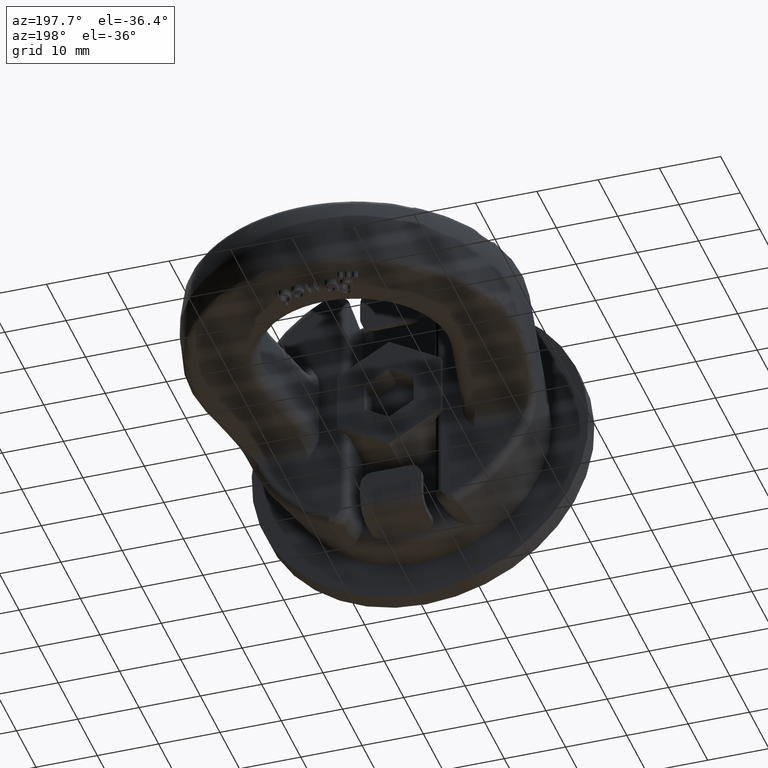
[diagram: clean part render]
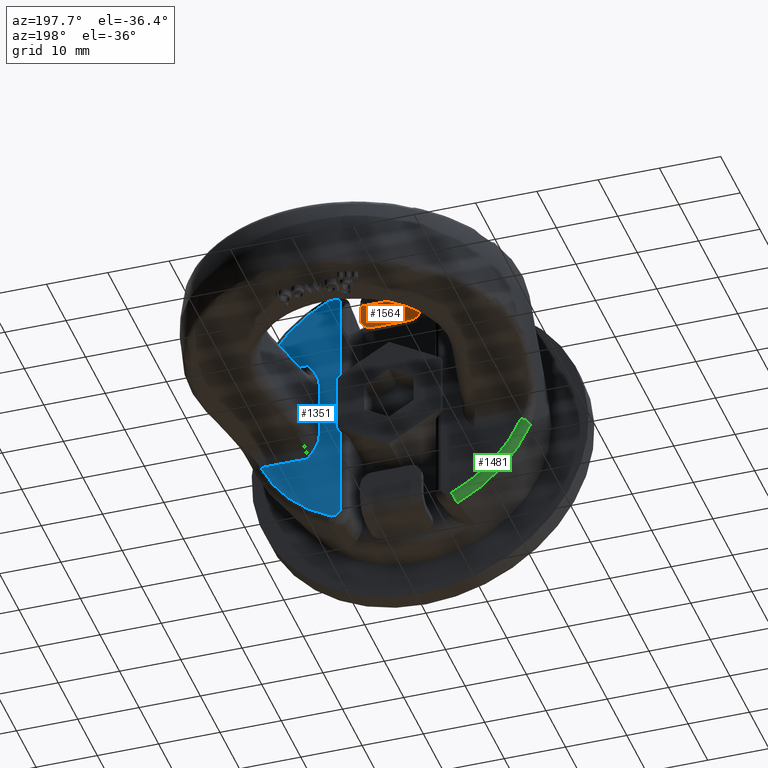
[diagram: same view with three faces highlighted in distinct colors, each labeled with its STEP entity id]
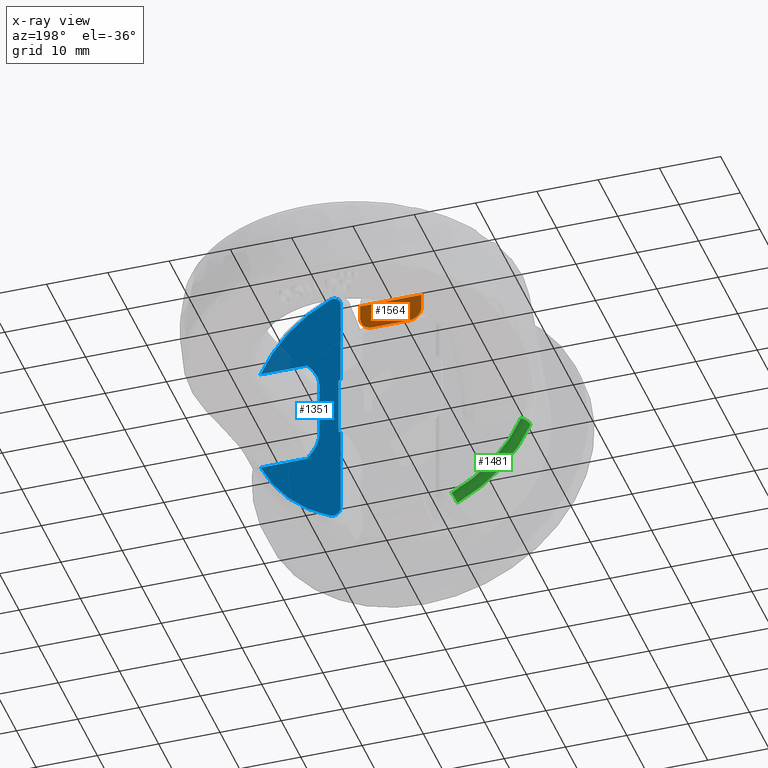
[diagram: x-ray of the same camera — body ghosted, the three highlighted faces saturated]
A machine part, auxiliary view with three faces highlighted in distinct colors.
The next image is the same camera in x-ray (body ghosted, the three faces saturated) — at least one of them is partly hidden behind the body in this view.
Their STEP definitions:

[orange] entity #1564 — the highlighted planar face has unit normal (0, -1, 0).
#1324=FACE_OUTER_BOUND('',#2108,.T.);
#1564=ADVANCED_FACE('',(#1324),#1694,.F.);
#1694=PLANE('',#5396);
#1779=CIRCLE('',#5394,2.);
#1780=CIRCLE('',#5395,2.);
#2108=EDGE_LOOP('',(#3819,#3820,#3821,#3822,#3823,#3824));
#2366=LINE('',#9649,#2702);
#2374=LINE('',#9671,#2710);
#2379=LINE('',#9684,#2715);
#2383=LINE('',#9698,#2719);
#2702=VECTOR('',#6158,1.);
#2710=VECTOR('',#6174,1.);
#2715=VECTOR('',#6183,1.);
#2719=VECTOR('',#6205,1.);
#3819=ORIENTED_EDGE('',*,*,#4851,.T.);
#3820=ORIENTED_EDGE('',*,*,#4859,.T.);
#3821=ORIENTED_EDGE('',*,*,#4845,.T.);
#3822=ORIENTED_EDGE('',*,*,#4860,.F.);
#3823=ORIENTED_EDGE('',*,*,#4835,.F.);
#3824=ORIENTED_EDGE('',*,*,#4861,.T.);
#4270=VERTEX_POINT('',#9648);
#4271=VERTEX_POINT('',#9650);
#4280=VERTEX_POINT('',#9670);
#4281=VERTEX_POINT('',#9672);
#4286=VERTEX_POINT('',#9683);
#4287=VERTEX_POINT('',#9685);
#4835=EDGE_CURVE('',#4270,#4271,#2366,.T.);
#4845=EDGE_CURVE('',#4281,#4280,#2374,.T.);
#4851=EDGE_CURVE('',#4287,#4286,#2379,.T.);
#4859=EDGE_CURVE('',#4286,#4281,#1779,.T.);
#4860=EDGE_CURVE('',#4271,#4280,#2383,.T.);
#4861=EDGE_CURVE('',#4270,#4287,#1780,.T.);
#5394=AXIS2_PLACEMENT_3D('',#9697,#6203,#6204);
#5395=AXIS2_PLACEMENT_3D('',#9699,#6206,#6207);
#5396=AXIS2_PLACEMENT_3D('',#9700,#6208,#6209);
#6158=DIRECTION('',(0.,0.,1.));
#6174=DIRECTION('',(0.,0.,1.));
#6183=DIRECTION('',(-1.,0.,0.));
#6203=DIRECTION('',(0.,1.,0.));
#6204=DIRECTION('',(0.,0.,-1.));
#6205=DIRECTION('',(-1.,0.,0.));
#6206=DIRECTION('',(0.,1.,0.));
#6207=DIRECTION('',(0.,0.,-1.));
#6208=DIRECTION('',(0.,-1.,0.));
#6209=DIRECTION('',(0.,0.,-1.));
#9648=CARTESIAN_POINT('',(5.,18.,16.));
#9649=CARTESIAN_POINT('',(5.,18.,14.));
#9650=CARTESIAN_POINT('',(5.,18.,18.5));
#9670=CARTESIAN_POINT('',(-5.,18.,18.5));
#9671=CARTESIAN_POINT('',(-5.,18.,14.));
#9672=CARTESIAN_POINT('',(-5.,18.,16.));
#9683=CARTESIAN_POINT('',(-3.,18.,14.));
#9684=CARTESIAN_POINT('',(5.,18.,14.));
#9685=CARTESIAN_POINT('',(3.,18.,14.));
#9697=CARTESIAN_POINT('',(-3.,18.,16.));
#9698=CARTESIAN_POINT('',(5.,18.,18.5));
#9699=CARTESIAN_POINT('',(3.,18.,16.));
#9700=CARTESIAN_POINT('',(5.,18.,14.));

[blue] entity #1351 — the highlighted planar face has unit normal (-0, 1, 0).
#1131=FACE_OUTER_BOUND('',#1868,.T.);
#1351=ADVANCED_FACE('',(#1131),#1591,.T.);
#1591=PLANE('',#5180);
#1712=CIRCLE('',#5178,23.0585735614723);
#1713=CIRCLE('',#5179,23.0585735614723);
#1868=EDGE_LOOP('',(#2839,#2840,#2841,#2842,#2843,#2844,#2845,#2846,#2847,
#2848,#2849,#2850,#2851,#2852));
#2184=LINE('',#6723,#2464);
#2185=LINE('',#6726,#2465);
#2186=LINE('',#6750,#2466);
#2187=LINE('',#6757,#2467);
#2188=LINE('',#6764,#2468);
#2189=LINE('',#6788,#2469);
#2190=LINE('',#6790,#2470);
#2191=LINE('',#6792,#2471);
#2464=VECTOR('',#5516,1.);
#2465=VECTOR('',#5517,1.);
#2466=VECTOR('',#5520,1.);
#2467=VECTOR('',#5521,1.);
#2468=VECTOR('',#5522,1.);
#2469=VECTOR('',#5525,1.);
#2470=VECTOR('',#5526,1.);
#2471=VECTOR('',#5527,1.);
#2839=ORIENTED_EDGE('',*,*,#4404,.T.);
#2840=ORIENTED_EDGE('',*,*,#4405,.T.);
#2841=ORIENTED_EDGE('',*,*,#4406,.T.);
#2842=ORIENTED_EDGE('',*,*,#4407,.T.);
#2843=ORIENTED_EDGE('',*,*,#4408,.T.);
#2844=ORIENTED_EDGE('',*,*,#4409,.T.);
#2845=ORIENTED_EDGE('',*,*,#4410,.F.);
#2846=ORIENTED_EDGE('',*,*,#4411,.T.);
#2847=ORIENTED_EDGE('',*,*,#4412,.T.);
#2848=ORIENTED_EDGE('',*,*,#4413,.T.);
#2849=ORIENTED_EDGE('',*,*,#4414,.T.);
#2850=ORIENTED_EDGE('',*,*,#4415,.T.);
#2851=ORIENTED_EDGE('',*,*,#4416,.T.);
#2852=ORIENTED_EDGE('',*,*,#4417,.T.);
#4013=VERTEX_POINT('',#6724);
#4014=VERTEX_POINT('',#6725);
#4015=VERTEX_POINT('',#6727);
#4016=VERTEX_POINT('',#6747);
#4017=VERTEX_POINT('',#6749);
#4018=VERTEX_POINT('',#6751);
#4019=VERTEX_POINT('',#6756);
#4020=VERTEX_POINT('',#6758);
#4021=VERTEX_POINT('',#6763);
#4022=VERTEX_POINT('',#6765);
#4023=VERTEX_POINT('',#6767);
#4024=VERTEX_POINT('',#6787);
#4025=VERTEX_POINT('',#6789);
#4026=VERTEX_POINT('',#6791);
#4404=EDGE_CURVE('',#4013,#4014,#2184,.T.);
#4405=EDGE_CURVE('',#4014,#4015,#2185,.T.);
#4406=EDGE_CURVE('',#4015,#4016,#4930,.T.);
#4407=EDGE_CURVE('',#4016,#4017,#1712,.T.);
#4408=EDGE_CURVE('',#4017,#4018,#2186,.T.);
#4409=EDGE_CURVE('',#4018,#4019,#4931,.T.);
#4410=EDGE_CURVE('',#4020,#4019,#2187,.T.);
#4411=EDGE_CURVE('',#4020,#4021,#4932,.T.);
#4412=EDGE_CURVE('',#4021,#4022,#2188,.T.);
#4413=EDGE_CURVE('',#4022,#4023,#1713,.T.);
#4414=EDGE_CURVE('',#4023,#4024,#4933,.T.);
#4415=EDGE_CURVE('',#4024,#4025,#2189,.T.);
#4416=EDGE_CURVE('',#4025,#4026,#2190,.T.);
#4417=EDGE_CURVE('',#4026,#4013,#2191,.T.);
#4930=B_SPLINE_CURVE_WITH_KNOTS('',3,(#6728,#6729,#6730,#6731,#6732,#6733,
#6734,#6735,#6736,#6737,#6738,#6739,#6740,#6741,#6742,#6743,#6744,#6745,
#6746),.UNSPECIFIED.,.F.,.F.,(4,3,3,3,3,3,4),(0.,0.173913740993882,0.34794975653833,
0.519970728914863,0.687916272468953,0.85218788622878,1.),.UNSPECIFIED.);
#4931=B_SPLINE_CURVE_WITH_KNOTS('',3,(#6752,#6753,#6754,#6755),
 .UNSPECIFIED.,.F.,.F.,(4,4),(0.,1.),.UNSPECIFIED.);
#4932=B_SPLINE_CURVE_WITH_KNOTS('',3,(#6759,#6760,#6761,#6762),
 .UNSPECIFIED.,.F.,.F.,(4,4),(0.,1.),.UNSPECIFIED.);
#4933=B_SPLINE_CURVE_WITH_KNOTS('',3,(#6768,#6769,#6770,#6771,#6772,#6773,
#6774,#6775,#6776,#6777,#6778,#6779,#6780,#6781,#6782,#6783,#6784,#6785,
#6786),.UNSPECIFIED.,.F.,.F.,(4,3,3,3,3,3,4),(0.,0.163143928497894,0.32634125043216,
0.488948773317029,0.6531592547778,0.820847093667727,1.),.UNSPECIFIED.);
#5178=AXIS2_PLACEMENT_3D('',#6748,#5518,#5519);
#5179=AXIS2_PLACEMENT_3D('',#6766,#5523,#5524);
#5180=AXIS2_PLACEMENT_3D('',#6793,#5528,#5529);
#5516=DIRECTION('',(-0.866025403784442,-1.28615169014872E-15,0.499999999999994));
#5517=DIRECTION('',(0.,0.,1.));
#5518=DIRECTION('',(-1.4851200490521E-15,1.,0.));
#5519=DIRECTION('',(-1.,-1.50462340729982E-15,0.));
#5520=DIRECTION('',(-1.,-1.4851200490521E-15,2.34206601248592E-31));
#5521=DIRECTION('',(0.,0.,1.));
#5522=DIRECTION('',(1.,1.4851200490521E-15,2.34291072916505E-15));
#5523=DIRECTION('',(-1.4851200490521E-15,1.,-3.47950369702229E-30));
#5524=DIRECTION('',(1.,1.50462340729982E-15,2.34291072916505E-15));
#5525=DIRECTION('',(-2.34291072916505E-15,0.,1.));
#5526=DIRECTION('',(0.866025403784441,1.28615169014872E-15,0.499999999999996));
#5527=DIRECTION('',(0.,0.,1.));
#5528=DIRECTION('',(-1.4851200490521E-15,1.,0.));
#5529=DIRECTION('',(-1.,-1.48492329543615E-15,0.));
#6723=CARTESIAN_POINT('',(-3.59863423223956,18.,11.8926270189221));
#6724=CARTESIAN_POINT('',(8.5,18.,4.90747728811183));
#6725=CARTESIAN_POINT('',(8.2,18.,5.08068236886872));
#6726=CARTESIAN_POINT('',(8.2,18.,30.25));
#6727=CARTESIAN_POINT('',(8.2,18.,19.7074068898093));
#6728=CARTESIAN_POINT('',(8.2,18.,19.7074068898093));
#6729=CARTESIAN_POINT('',(8.19999999999997,18.,19.8475984672965));
#6730=CARTESIAN_POINT('',(8.22403019668563,18.,19.9897280138441));
#6731=CARTESIAN_POINT('',(8.27029605568074,18.,20.1220652674418));
#6732=CARTESIAN_POINT('',(8.31657998890804,18.,20.2544542199445));
#6733=CARTESIAN_POINT('',(8.38645599770044,18.,20.3807404755586));
#6734=CARTESIAN_POINT('',(8.47442050700574,18.,20.4899708848887));
#6735=CARTESIAN_POINT('',(8.5613552141957,18.,20.5979225318239));
#6736=CARTESIAN_POINT('',(8.66847689034592,18.,20.692256622393));
#6737=CARTESIAN_POINT('',(8.78685429309547,18.,20.7643537229484));
#6738=CARTESIAN_POINT('',(8.90245954289845,18.,20.8347624591277));
#6739=CARTESIAN_POINT('',(9.03210022045376,18.,20.8859368215231));
#6740=CARTESIAN_POINT('',(9.16470424408274,18.,20.9131054952076));
#6741=CARTESIAN_POINT('',(9.29446715757258,18.,20.9396920659351));
#6742=CARTESIAN_POINT('',(9.43069080674379,18.,20.9440349645498));
#6743=CARTESIAN_POINT('',(9.56187906543494,18.,20.9257346847158));
#6744=CARTESIAN_POINT('',(9.68025775905732,18.,20.9092212921203));
#6745=CARTESIAN_POINT('',(9.79738029960473,18.,20.8739895602634));
#6746=CARTESIAN_POINT('',(9.90531520880016,18.,20.8226450122011));
#6747=CARTESIAN_POINT('',(9.90531520880016,18.,20.8226450122011));
#6748=CARTESIAN_POINT('',(-2.27704335976231E-13,18.,0.));
#6749=CARTESIAN_POINT('',(21.2296447141686,18.,9.00000000000001));
#6750=CARTESIAN_POINT('',(7.,18.,9.00000000000001));
#6751=CARTESIAN_POINT('',(13.6366331307684,18.,9.00000000000001));
#6752=CARTESIAN_POINT('',(13.6366331307684,18.,9.00000000000001));
#6753=CARTESIAN_POINT('',(12.5971688054422,18.,7.83719916176281));
#6754=CARTESIAN_POINT('',(11.6722781153861,18.,6.44214330428342));
#6755=CARTESIAN_POINT('',(11.6722781153861,18.,4.86617382128197));
#6756=CARTESIAN_POINT('',(11.6722781153861,18.,4.86617382128197));
#6757=CARTESIAN_POINT('',(11.6722781153861,18.,30.25));
#6758=CARTESIAN_POINT('',(11.6722781153861,18.,-4.86617382128196));
#6759=CARTESIAN_POINT('',(11.6722781153861,18.,-4.86617382128196));
#6760=CARTESIAN_POINT('',(11.6722781153861,18.,-6.4421433042834));
#6761=CARTESIAN_POINT('',(12.5971688054416,18.,-7.83719916176337));
#6762=CARTESIAN_POINT('',(13.6366331307684,18.,-8.99999999999998));
#6763=CARTESIAN_POINT('',(13.6366331307684,18.,-8.99999999999998));
#6764=CARTESIAN_POINT('',(11.6722781153861,18.,-8.99999999999998));
#6765=CARTESIAN_POINT('',(21.2296447141688,18.,-8.99999999999996));
#6766=CARTESIAN_POINT('',(1.11938377458753E-13,18.,2.62261625553439E-28));
#6767=CARTESIAN_POINT('',(9.9053152087982,18.,-20.8226450122021));
#6768=CARTESIAN_POINT('',(9.9053152087982,18.,-20.8226450122021));
#6769=CARTESIAN_POINT('',(9.78649389450193,18.,-20.8791682142705));
#6770=CARTESIAN_POINT('',(9.65634064361188,18.,-20.9161308543706));
#6771=CARTESIAN_POINT('',(9.52551778788252,18.,-20.9302289933248));
#6772=CARTESIAN_POINT('',(9.39466572896151,18.,-20.9443302793639));
#6773=CARTESIAN_POINT('',(9.25955769077138,18.,-20.9359288782153));
#6774=CARTESIAN_POINT('',(9.1314459861281,18.,-20.9057875656158));
#6775=CARTESIAN_POINT('',(9.00375929452363,18.,-20.8757462473994));
#6776=CARTESIAN_POINT('',(8.87954905156012,18.,-20.8233256931006));
#6777=CARTESIAN_POINT('',(8.76875334206031,18.,-20.7531068724788));
#6778=CARTESIAN_POINT('',(8.65685200514298,18.,-20.6821873401269));
#6779=CARTESIAN_POINT('',(8.55561372272324,18.,-20.5912500896661));
#6780=CARTESIAN_POINT('',(8.47274486446852,18.,-20.4878854844839));
#6781=CARTESIAN_POINT('',(8.38813368758692,18.,-20.3823476373775));
#6782=CARTESIAN_POINT('',(8.32038451426799,18.,-20.2610559114222));
#6783=CARTESIAN_POINT('',(8.27447115351672,18.,-20.133818921008));
#6784=CARTESIAN_POINT('',(8.22549573372489,18.,-19.9980962268592));
#6785=CARTESIAN_POINT('',(8.20000000000001,18.,-19.851695633136));
#6786=CARTESIAN_POINT('',(8.20000000000005,18.,-19.7074068898094));
#6787=CARTESIAN_POINT('',(8.20000000000005,18.,-19.7074068898094));
#6788=CARTESIAN_POINT('',(8.20000000000007,18.,-30.25));
#6789=CARTESIAN_POINT('',(8.20000000000001,18.,-5.0806823688687));
#6790=CARTESIAN_POINT('',(-0.0944256456999534,18.,-9.86947124818686));
#6791=CARTESIAN_POINT('',(8.50000000000001,18.,-4.90747728811181));
#6792=CARTESIAN_POINT('',(8.5,18.,30.25));
#6793=CARTESIAN_POINT('',(7.,18.,30.25));

[green] entity #1481 — the highlighted toroidal blend (fillet) surface has major radius 23.0586 mm and minor (blend) radius 1.2 mm.
#1058=TOROIDAL_SURFACE('',#5326,23.0585735614723,1.2);
#1248=FACE_OUTER_BOUND('',#2018,.T.);
#1481=ADVANCED_FACE('',(#1248),#1058,.T.);
#1709=CIRCLE('',#5171,23.0585735614723);
#1715=CIRCLE('',#5182,24.2348963405291);
#1761=CIRCLE('',#5324,1.2);
#1762=CIRCLE('',#5325,1.2);
#2018=EDGE_LOOP('',(#3462,#3463,#3464,#3465));
#3462=ORIENTED_EDGE('',*,*,#4702,.T.);
#3463=ORIENTED_EDGE('',*,*,#4384,.F.);
#3464=ORIENTED_EDGE('',*,*,#4703,.F.);
#3465=ORIENTED_EDGE('',*,*,#4421,.F.);
#3995=VERTEX_POINT('',#6657);
#3996=VERTEX_POINT('',#6659);
#4030=VERTEX_POINT('',#6811);
#4031=VERTEX_POINT('',#6813);
#4384=EDGE_CURVE('',#3995,#3996,#1709,.T.);
#4421=EDGE_CURVE('',#4030,#4031,#1715,.T.);
#4702=EDGE_CURVE('',#4030,#3996,#1761,.T.);
#4703=EDGE_CURVE('',#4031,#3995,#1762,.T.);
#5171=AXIS2_PLACEMENT_3D('',#6658,#5491,#5492);
#5182=AXIS2_PLACEMENT_3D('',#6812,#5532,#5533);
#5324=AXIS2_PLACEMENT_3D('',#8685,#5958,#5959);
#5325=AXIS2_PLACEMENT_3D('',#8704,#5960,#5961);
#5326=AXIS2_PLACEMENT_3D('',#8705,#5962,#5963);
#5491=DIRECTION('',(1.4851200490521E-15,1.,3.47950369702229E-30));
#5492=DIRECTION('',(1.,-1.50462340729982E-15,2.34291072916505E-15));
#5532=DIRECTION('',(-1.4851200490521E-15,-1.,-3.47950369702229E-30));
#5533=DIRECTION('',(-1.,1.43159141396924E-15,-2.34291072916505E-15));
#5958=DIRECTION('',(0.390310353587435,-1.76208204144733E-14,-0.920683348324738));
#5959=DIRECTION('',(-0.920683348324738,0.,-0.390310353587436));
#5960=DIRECTION('',(0.90303265970419,-1.01513389837667E-15,-0.429571897949082));
#5961=DIRECTION('',(-0.429571897949082,0.,-0.903032659704189));
#5962=DIRECTION('',(1.4851200490521E-15,1.,3.47950369702229E-30));
#5963=DIRECTION('',(1.,-1.43019413040172E-15,2.34291072916505E-15));
#6657=CARTESIAN_POINT('',(-9.90531520880011,18.,-20.8226450122011));
#6658=CARTESIAN_POINT('',(2.27704335976231E-13,18.,5.33490931836115E-28));
#6659=CARTESIAN_POINT('',(-21.2296447141686,18.,-9.00000000000006));
#6811=CARTESIAN_POINT('',(-22.3126655091013,16.5627981461453,-9.45913095982666));
#6812=CARTESIAN_POINT('',(9.39089219997576E-14,16.5627981461452,2.20020220917556E-28));
#6813=CARTESIAN_POINT('',(-10.4106304176003,16.5627981461453,-21.8849029000434));
#8685=CARTESIAN_POINT('',(-21.2296447141686,16.8,-9.00000000000006));
#8704=CARTESIAN_POINT('',(-9.90531520880011,16.8,-20.8226450122011));
#8705=CARTESIAN_POINT('',(2.25922191917369E-13,16.8,5.29315527399688E-28));